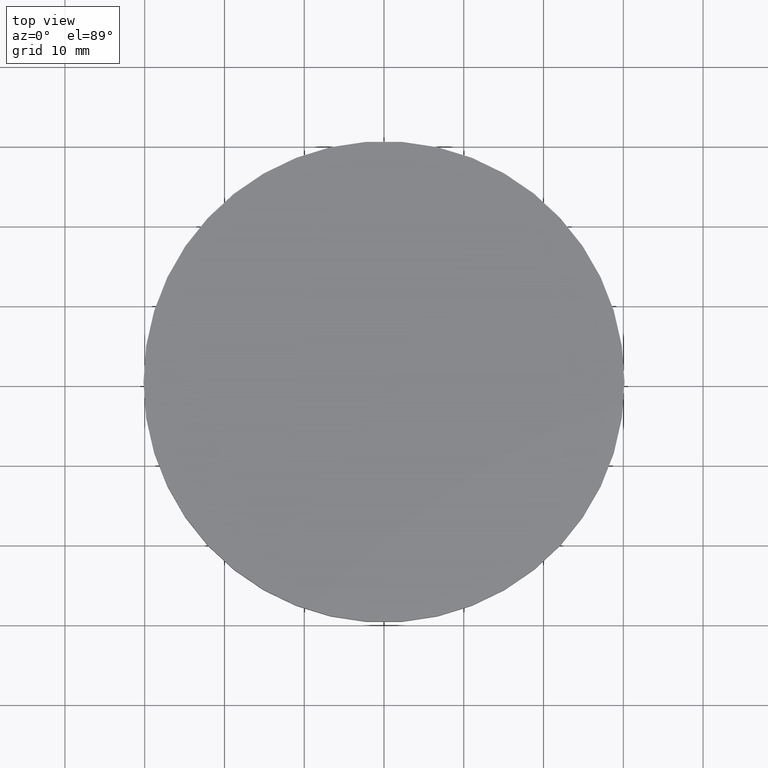
[diagram: clean part render]
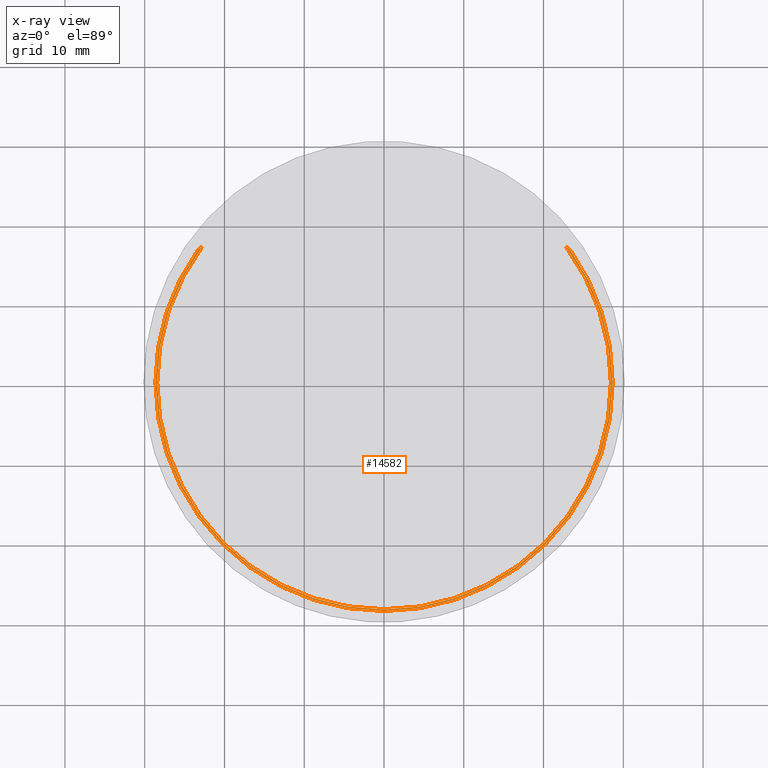
[diagram: x-ray — body ghosted, one internal face saturated and labeled with its STEP entity id]
A machine part, top view, then the same camera in x-ray: the body is ghosted and one INTERNAL B-rep face — a face not visible from any outside direction — is saturated and labeled: STEP entity #14582.
In plain terms, the highlighted planar face has unit normal (0, 0, -1).
Its self-contained STEP definition (entity closure, byte-faithful):
#133 = AXIS2_PLACEMENT_3D ( 'NONE', #25112, #1689, #9565 ) ;
#510 = CARTESIAN_POINT ( 'NONE',  ( 0.000000000000000000, 0.000000000000000000, -3.000000000000002665 ) ) ;
#1080 = CIRCLE ( 'NONE', #17594, 28.44999999999999574 ) ;
#1418 = DIRECTION ( 'NONE',  ( 0.000000000000000000, 0.000000000000000000, -1.000000000000000000 ) ) ;
#1689 = DIRECTION ( 'NONE',  ( -0.000000000000000000, -0.000000000000000000, 1.000000000000000000 ) ) ;
#2201 = CARTESIAN_POINT ( 'NONE',  ( -22.33859141806065196, 15.86654762249642125, -3.000000000000002665 ) ) ;
#3093 = DIRECTION ( 'NONE',  ( -1.000000000000000000, 0.000000000000000000, 0.000000000000000000 ) ) ;
#3758 = DIRECTION ( 'NONE',  ( 0.000000000000000000, 0.000000000000000000, -1.000000000000000000 ) ) ;
#4801 = DIRECTION ( 'NONE',  ( 1.000000000000000000, 0.000000000000000000, 0.000000000000000000 ) ) ;
#5316 = DIRECTION ( 'NONE',  ( 0.000000000000000000, 0.000000000000000000, -1.000000000000000000 ) ) ;
#5355 = EDGE_CURVE ( 'NONE', #12272, #9663, #5784, .T. ) ;
#5784 = CIRCLE ( 'NONE', #133, 28.44999999999999574 ) ;
#5799 = CIRCLE ( 'NONE', #25075, 1.250000000000001110 ) ;
#5961 = AXIS2_PLACEMENT_3D ( 'NONE', #2201, #8009, #21537 ) ;
#6330 = ORIENTED_EDGE ( 'NONE', *, *, #18997, .F. ) ;
#7129 = ORIENTED_EDGE ( 'NONE', *, *, #12395, .F. ) ;
#7315 = CIRCLE ( 'NONE', #8868, 28.44999999999999574 ) ;
#8009 = DIRECTION ( 'NONE',  ( 0.000000000000000000, 0.000000000000000000, -1.000000000000000000 ) ) ;
#8053 = EDGE_LOOP ( 'NONE', ( #10077, #18193, #19105, #14085, #24966, #7129, #18761, #6330 ) ) ;
#8599 = CARTESIAN_POINT ( 'NONE',  ( -28.64999999999999858, 3.508613079557166886E-15, -3.000000000000002665 ) ) ;
#8727 = AXIS2_PLACEMENT_3D ( 'NONE', #14975, #5316, #3093 ) ;
#8868 = AXIS2_PLACEMENT_3D ( 'NONE', #22322, #22411, #4801 ) ;
#9008 = VERTEX_POINT ( 'NONE', #8599 ) ;
#9488 = CARTESIAN_POINT ( 'NONE',  ( 0.000000000000000000, 0.000000000000000000, -3.000000000000001776 ) ) ;
#9565 = DIRECTION ( 'NONE',  ( 1.000000000000000000, 0.000000000000000000, 0.000000000000000000 ) ) ;
#9663 = VERTEX_POINT ( 'NONE', #11979 ) ;
#9722 = DIRECTION ( 'NONE',  ( 0.000000000000000000, 0.000000000000000000, -1.000000000000000000 ) ) ;
#10034 = CIRCLE ( 'NONE', #5961, 1.250000000000001110 ) ;
#10077 = ORIENTED_EDGE ( 'NONE', *, *, #15208, .F. ) ;
#10203 = CARTESIAN_POINT ( 'NONE',  ( 23.35768774187728880, 16.59038647388767629, -3.000000000000001332 ) ) ;
#11795 = VERTEX_POINT ( 'NONE', #10203 ) ;
#11810 = AXIS2_PLACEMENT_3D ( 'NONE', #22721, #1418, #24670 ) ;
#11979 = CARTESIAN_POINT ( 'NONE',  ( 22.78761868766939003, 17.03311288477184249, -3.000000000000001776 ) ) ;
#12150 = CIRCLE ( 'NONE', #8727, 28.64999999999999858 ) ;
#12272 = VERTEX_POINT ( 'NONE', #14291 ) ;
#12360 = AXIS2_PLACEMENT_3D ( 'NONE', #12995, #9722, #15365 ) ;
#12395 = EDGE_CURVE ( 'NONE', #14378, #18678, #10034, .T. ) ;
#12911 = CARTESIAN_POINT ( 'NONE',  ( 28.64999999999999858, 0.000000000000000000, -3.000000000000002665 ) ) ;
#12995 = CARTESIAN_POINT ( 'NONE',  ( 0.000000000000000000, -28.64999999999999503, -3.000000000000001776 ) ) ;
#13348 = CIRCLE ( 'NONE', #22008, 28.64999999999999858 ) ;
#14085 = ORIENTED_EDGE ( 'NONE', *, *, #17240, .F. ) ;
#14126 = DIRECTION ( 'NONE',  ( 0.000000000000000000, 0.000000000000000000, -1.000000000000000000 ) ) ;
#14128 = EDGE_CURVE ( 'NONE', #9008, #14378, #12150, .T. ) ;
#14291 = CARTESIAN_POINT ( 'NONE',  ( 28.44999999999999574, 0.000000000000000000, -3.000000000000001776 ) ) ;
#14378 = VERTEX_POINT ( 'NONE', #19892 ) ;
#14582 = ADVANCED_FACE ( 'NONE', ( #23135 ), #22725, .F. ) ;
#14975 = CARTESIAN_POINT ( 'NONE',  ( 0.000000000000000000, 0.000000000000000000, -3.000000000000002665 ) ) ;
#15208 = EDGE_CURVE ( 'NONE', #11795, #20133, #13348, .T. ) ;
#15273 = CARTESIAN_POINT ( 'NONE',  ( -22.78761868766939003, 17.03311288477183894, -3.000000000000001776 ) ) ;
#15365 = DIRECTION ( 'NONE',  ( -1.000000000000000000, 0.000000000000000000, -0.000000000000000000 ) ) ;
#17240 = EDGE_CURVE ( 'NONE', #17465, #12272, #1080, .T. ) ;
#17465 = VERTEX_POINT ( 'NONE', #20313 ) ;
#17594 = AXIS2_PLACEMENT_3D ( 'NONE', #9488, #23158, #20959 ) ;
#18193 = ORIENTED_EDGE ( 'NONE', *, *, #22686, .F. ) ;
#18221 = DIRECTION ( 'NONE',  ( -1.000000000000000000, 0.000000000000000000, 0.000000000000000000 ) ) ;
#18678 = VERTEX_POINT ( 'NONE', #15273 ) ;
#18761 = ORIENTED_EDGE ( 'NONE', *, *, #14128, .F. ) ;
#18997 = EDGE_CURVE ( 'NONE', #20133, #9008, #20617, .T. ) ;
#19105 = ORIENTED_EDGE ( 'NONE', *, *, #5355, .F. ) ;
#19892 = CARTESIAN_POINT ( 'NONE',  ( -23.35768774187729591, 16.59038647388766563, -3.000000000000001332 ) ) ;
#20133 = VERTEX_POINT ( 'NONE', #12911 ) ;
#20313 = CARTESIAN_POINT ( 'NONE',  ( -28.44999999999999574, 3.484120143574219383E-15, -3.000000000000001776 ) ) ;
#20617 = CIRCLE ( 'NONE', #11810, 28.64999999999999858 ) ;
#20959 = DIRECTION ( 'NONE',  ( 1.000000000000000000, 0.000000000000000000, 0.000000000000000000 ) ) ;
#21454 = DIRECTION ( 'NONE',  ( -1.000000000000000000, 0.000000000000000000, 0.000000000000000000 ) ) ;
#21537 = DIRECTION ( 'NONE',  ( -1.000000000000000000, 0.000000000000000000, 0.000000000000000000 ) ) ;
#22008 = AXIS2_PLACEMENT_3D ( 'NONE', #510, #14126, #18221 ) ;
#22322 = CARTESIAN_POINT ( 'NONE',  ( 0.000000000000000000, 0.000000000000000000, -3.000000000000001776 ) ) ;
#22411 = DIRECTION ( 'NONE',  ( -0.000000000000000000, -0.000000000000000000, 1.000000000000000000 ) ) ;
#22686 = EDGE_CURVE ( 'NONE', #9663, #11795, #5799, .T. ) ;
#22721 = CARTESIAN_POINT ( 'NONE',  ( 0.000000000000000000, 0.000000000000000000, -3.000000000000002665 ) ) ;
#22725 = PLANE ( 'NONE',  #12360 ) ;
#23135 = FACE_OUTER_BOUND ( 'NONE', #8053, .T. ) ;
#23158 = DIRECTION ( 'NONE',  ( -0.000000000000000000, -0.000000000000000000, 1.000000000000000000 ) ) ;
#23163 = CARTESIAN_POINT ( 'NONE',  ( 22.33859141806065196, 15.86654762249642125, -3.000000000000002665 ) ) ;
#23745 = EDGE_CURVE ( 'NONE', #18678, #17465, #7315, .T. ) ;
#24670 = DIRECTION ( 'NONE',  ( -1.000000000000000000, 0.000000000000000000, 0.000000000000000000 ) ) ;
#24966 = ORIENTED_EDGE ( 'NONE', *, *, #23745, .F. ) ;
#25075 = AXIS2_PLACEMENT_3D ( 'NONE', #23163, #3758, #21454 ) ;
#25112 = CARTESIAN_POINT ( 'NONE',  ( 0.000000000000000000, 0.000000000000000000, -3.000000000000001776 ) ) ;